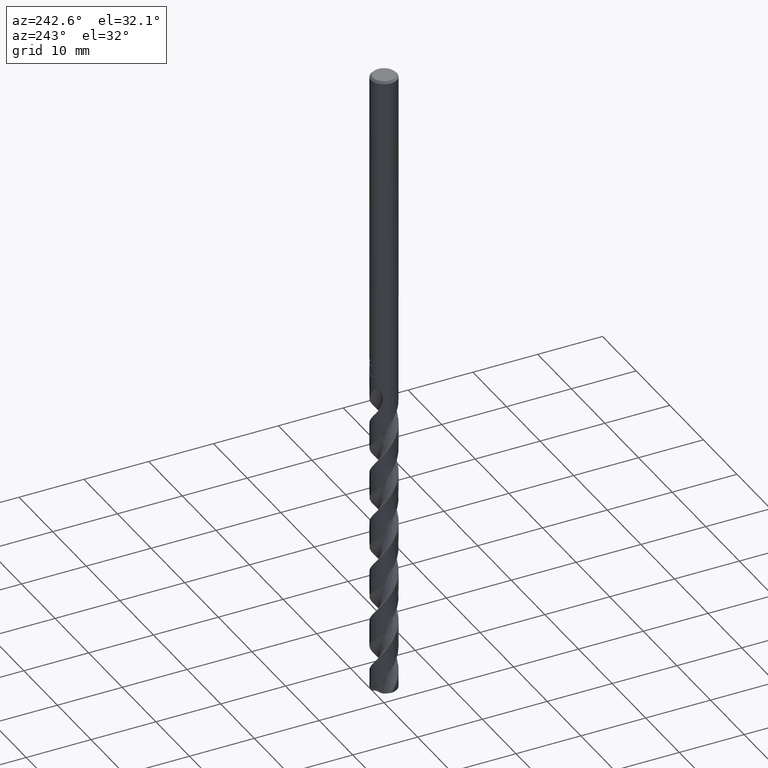
[diagram: clean part render]
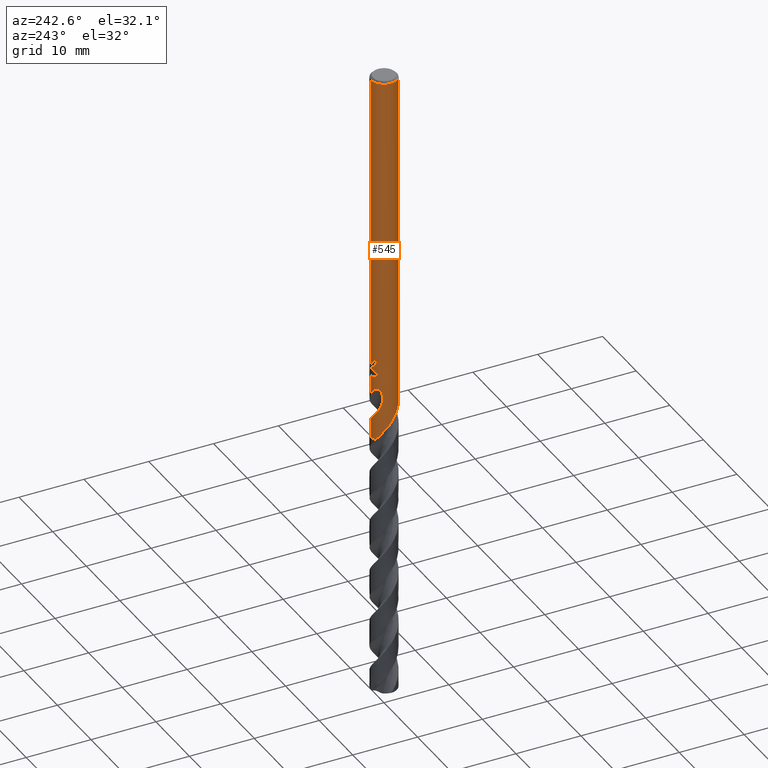
[diagram: same view with one face highlighted and labeled with its STEP entity id]
A machine part, auxiliary view. The second image highlights one B-rep face of the part: STEP entity #545.
In plain terms, the highlighted cylindrical surface (edge-blend (fillet) strip) has radius 2 mm, axis along (-0, -0, 1).
Its self-contained STEP definition (entity closure, byte-faithful):
#393=VERTEX_POINT('',#1035);
#431=EDGE_CURVE('',#665,#955,#1077,.T.);
#435=EDGE_CURVE('',#745,#945,#1081,.T.);
#511=EDGE_CURVE('',#953,#523,#1165,.T.);
#517=EDGE_CURVE('',#897,#879,#1172,.T.);
#523=VERTEX_POINT('',#1180);
#533=VERTEX_POINT('',#1190);
#539=EDGE_CURVE('',#533,#751,#1196,.T.);
#545=ADVANCED_FACE('',(#1202),#1203,.T.);
#569=EDGE_CURVE('',#639,#657,#1230,.T.);
#607=VERTEX_POINT('',#1271);
#629=EDGE_CURVE('',#955,#639,#1295,.T.);
#631=EDGE_CURVE('',#937,#665,#1297,.T.);
#639=VERTEX_POINT('',#1305);
#657=VERTEX_POINT('',#1325);
#665=VERTEX_POINT('',#1334);
#673=EDGE_CURVE('',#607,#809,#1343,.T.);
#681=EDGE_CURVE('',#919,#937,#1352,.T.);
#697=EDGE_CURVE('',#879,#851,#1369,.T.);
#699=EDGE_CURVE('',#945,#897,#1371,.T.);
#745=VERTEX_POINT('',#1423);
#751=VERTEX_POINT('',#1430);
#791=EDGE_CURVE('',#393,#533,#1474,.T.);
#809=VERTEX_POINT('',#1492);
#811=EDGE_CURVE('',#745,#657,#1494,.T.);
#839=EDGE_CURVE('',#809,#953,#1523,.T.);
#851=VERTEX_POINT('',#1535);
#853=EDGE_CURVE('',#851,#607,#1537,.T.);
#855=EDGE_CURVE('',#523,#393,#1539,.T.);
#875=EDGE_CURVE('',#751,#919,#1561,.T.);
#879=VERTEX_POINT('',#1566);
#897=VERTEX_POINT('',#1584);
#919=VERTEX_POINT('',#1608);
#937=VERTEX_POINT('',#1627);
#945=VERTEX_POINT('',#1635);
#953=VERTEX_POINT('',#1644);
#955=VERTEX_POINT('',#1646);
#1035=CARTESIAN_POINT('',(2.06254272401597E-016,2.0,-46.5000801551882));
#1077=B_SPLINE_CURVE_WITH_KNOTS('',3,(#4420,#4421,#4422,#4423),.UNSPECIFIED.,.F.,.F.,(4,4),(0.0,1.14943980484442),.UNSPECIFIED.);
#1081=B_SPLINE_CURVE_WITH_KNOTS('',3,(#4450,#4451,#4452,#4453,#4454,#4455,#4456,#4457,#4458,#4459,#4460,#4461,#4462,#4463,#4464,#4465,#4466,#4467,#4468,#4469,#4470,#4471,#4472,#4473,#4474,#4475,#4476,#4477,#4478,#4479,#4480,#4481),.UNSPECIFIED.,.F.,.F.,(4,2,2,2,2,2,2,2,2,2,2,2,2,2,2,4),(0.0,0.415921494881241,0.623686639972882,0.831137669081437,1.24699902469341,1.45488942522247,1.87002627350651,2.33743914243429,2.80376110627365,4.17282011940477,4.8108756172487,5.04513677419802,5.68085786591021,6.11884105644909,6.31265832183833,6.5653751221707),.UNSPECIFIED.);
#1165=CIRCLE('',#8269,2.0);
#1172=LINE('',#8279,#8280);
#1180=CARTESIAN_POINT('',(-1.0350734039088,1.71132201777476,-45.3171221986971));
#1190=CARTESIAN_POINT('',(2.93044111428508E-015,2.0,-46.7128911336578));
#1196=ELLIPSE('',#8570,2.22985686408572,2.0);
#1202=FACE_OUTER_BOUND('',#8832,.T.);
#1203=CYLINDRICAL_SURFACE('',#8833,2.0);
#1230=LINE('',#9143,#9144);
#1271=CARTESIAN_POINT('',(-2.82033683478733E-016,2.0,-46.0232688117743));
#1295=B_SPLINE_CURVE_WITH_KNOTS('',3,(#10137,#10138,#10139,#10140,#10141,#10142,#10143,#10144,#10145,#10146,#10147,#10148,#10149,#10150,#10151,#10152,#10153,#10154,#10155,#10156,#10157,#10158,#10159,#10160,#10161,#10162,#10163,#10164,#10165,#10166),.UNSPECIFIED.,.F.,.F.,(4,2,2,2,2,2,2,2,2,2,2,2,2,2,4),(0.0,0.229077637688343,0.362068198238509,0.571144048483746,1.12078102650243,1.59148268417009,2.04437097566891,3.03302516995581,3.41907928026092,3.75695923837302,4.34834158153067,4.79191995088264,5.12454733467214,5.62384075377745,6.12295032978005),.UNSPECIFIED.);
#1297=B_SPLINE_CURVE_WITH_KNOTS('',3,(#10169,#10170,#10171,#10172,#10173,#10174,#10175,#10176,#10177,#10178,#10179,#10180,#10181,#10182,#10183,#10184,#10185,#10186,#10187,#10188,#10189,#10190,#10191,#10192,#10193,#10194,#10195,#10196),.UNSPECIFIED.,.F.,.F.,(4,2,2,2,2,2,2,2,2,2,2,2,2,4),(0.0,0.979891025783958,1.51493345566995,1.9995474122048,2.56255251247716,3.23885008512034,3.82500886700077,4.09063559365806,4.28477636240836,4.46849031469403,4.70154241769869,5.04250710011559,5.52722848363497,6.07843027913602),.UNSPECIFIED.);
#1305=CARTESIAN_POINT('',(7.02870758557275E-013,2.0,-54.9892944147125));
#1325=CARTESIAN_POINT('',(-2.44921270747736E-016,2.0,-58.0));
#1334=CARTESIAN_POINT('',(-1.62728432652948,1.16273200722759,-51.9338395401998));
#1343=B_SPLINE_CURVE_WITH_KNOTS('',3,(#10272,#10273,#10274,#10275,#10276,#10277,#10278,#10279,#10280,#10281,#10282,#10283,#10284,#10285,#10286,#10287,#10288,#10289,#10290,#10291,#10292,#10293,#10294,#10295,#10296,#10297,#10298),.UNSPECIFIED.,.F.,.F.,(4,2,3,2,2,2,2,2,2,2,2,2,4),(-0.548215590012305,-0.274107795006152,0.0,0.274107795006152,0.548215590012304,0.825730471423241,1.10324535283418,1.37444912584474,1.6456528988553,1.91870457575909,2.19175625266287,2.46480792956666,2.73785960647044),.UNSPECIFIED.);
#1352=LINE('',#10308,#10309);
#1369=CIRCLE('',#11784,2.0);
#1371=B_SPLINE_CURVE_WITH_KNOTS('',3,(#11787,#11788,#11789,#11790,#11791,#11792,#11793,#11794,#11795,#11796,#11797,#11798,#11799,#11800,#11801,#11802,#11803,#11804,#11805,#11806,#11807,#11808,#11809,#11810,#11811,#11812,#11813,#11814),.UNSPECIFIED.,.F.,.F.,(4,2,2,2,2,2,2,2,2,2,2,2,2,4),(0.0,0.979891025783956,1.51493345566995,1.99954741220481,2.56255251247721,3.23885008512057,3.82500886700108,4.09063559365836,4.28477636240868,4.46849031469436,4.70154241769904,5.04250710011594,5.52722848363531,6.07843027913632),.UNSPECIFIED.);
#1423=CARTESIAN_POINT('',(-0.910184588124474,1.78088854663639,-58.0));
#1430=CARTESIAN_POINT('',(-1.337052752443,1.4873768645453,-47.3720803908795));
#1474=LINE('',#14787,#14788);
#1492=CARTESIAN_POINT('',(-0.486378944383045,1.9399576084185,-45.6432837483006));
#1494=CIRCLE('',#15464,2.0);
#1523=B_SPLINE_CURVE_WITH_KNOTS('',3,(#16533,#16534,#16535,#16536,#16537,#16538,#16539,#16540,#16541,#16542,#16543,#16544,#16545,#16546,#16547,#16548,#16549,#16550,#16551,#16552,#16553,#16554,#16555,#16556,#16557,#16558,#16559),.UNSPECIFIED.,.F.,.F.,(4,2,3,2,2,2,2,2,2,2,2,2,4),(-0.548215590012305,-0.274107795006152,0.0,0.274107795006152,0.548215590012304,0.825730471423241,1.10324535283418,1.37444912584474,1.6456528988553,1.91870457575909,2.19175625266287,2.46480792956666,2.73785960647044),.UNSPECIFIED.);
#1535=CARTESIAN_POINT('',(0.0,2.0,-0.299999999999997));
#1537=LINE('',#16593,#16594);
#1539=B_SPLINE_CURVE_WITH_KNOTS('',3,(#16597,#16598,#16599,#16600,#16601,#16602,#16603,#16604,#16605,#16606,#16607,#16608,#16609,#16610,#16611,#16612,#16613,#16614,#16615,#16616),.UNSPECIFIED.,.F.,.F.,(4,2,2,2,2,2,2,2,2,4),(3.45441030101493,3.68346067074282,3.91251104047072,4.14156141019862,4.59966214965442,5.05038771369436,5.27575049571434,5.50111327773431,5.73544410316885,5.96977492860339),.UNSPECIFIED.);
#1561=B_SPLINE_CURVE_WITH_KNOTS('',3,(#16643,#16644,#16645,#16646,#16647,#16648,#16649,#16650,#16651,#16652,#16653,#16654,#16655,#16656),.UNSPECIFIED.,.F.,.F.,(4,2,2,2,2,2,4),(6.29875163181924,6.63672345938473,6.96307452388774,7.28942558839074,7.61577665289375,7.94212771739676,8.26462777482947),.UNSPECIFIED.);
#1566=CARTESIAN_POINT('',(2.44921270781215E-016,-2.0,-0.299999999999997));
#1584=CARTESIAN_POINT('',(5.92093377365524E-013,-2.0,-50.9030385828122));
#1608=CARTESIAN_POINT('',(-7.24729156774638E-017,2.0,-48.0310253601033));
#1627=CARTESIAN_POINT('',(-5.96423247161545E-013,2.0,-50.9030385828122));
#1635=CARTESIAN_POINT('',(-1.27443340277912,-1.54136935932982,-53.029));
#1644=CARTESIAN_POINT('',(-0.562333990228013,1.91931771299966,-45.3171221986971));
#1646=CARTESIAN_POINT('',(-1.39015468452944,1.43786993607936,-53.029));
#4420=CARTESIAN_POINT('',(-1.6272843265821,1.16273200715394,-51.9338395402287));
#4421=CARTESIAN_POINT('',(-1.56280597492687,1.25297172740491,-52.3005828474421));
#4422=CARTESIAN_POINT('',(-1.48509232689284,1.34608276885509,-52.6695086289497));
#4423=CARTESIAN_POINT('',(-1.39015468452944,1.43786993607936,-53.029));
#4450=CARTESIAN_POINT('',(-0.910184588124463,1.78088854663639,-58.0));
#4451=CARTESIAN_POINT('',(-0.986467079647253,1.74190174521139,-57.8909945021163));
#4452=CARTESIAN_POINT('',(-1.06019067306469,1.69804157411689,-57.7823329131508));
#4453=CARTESIAN_POINT('',(-1.16621908890731,1.62535132959475,-57.6189622437749));
#4454=CARTESIAN_POINT('',(-1.20072654913492,1.60002630357028,-57.5645585666677));
#4455=CARTESIAN_POINT('',(-1.26796434961204,1.54728449275102,-57.4556948699224));
#4456=CARTESIAN_POINT('',(-1.30067961366061,1.51988643856683,-57.4012132729875));
#4457=CARTESIAN_POINT('',(-1.39632648100066,1.43443197026043,-57.2377866565988));
#4458=CARTESIAN_POINT('',(-1.45646875271387,1.37333439480957,-57.1291082874377));
#4459=CARTESIAN_POINT('',(-1.54059083420668,1.2760941645493,-56.9657608822811));
#4460=CARTESIAN_POINT('',(-1.56756797106405,1.24280495984925,-56.9113479379802));
#4461=CARTESIAN_POINT('',(-1.6451210980788,1.14056473783576,-56.7481107280335));
#4462=CARTESIAN_POINT('',(-1.69234719991609,1.0692383701506,-56.6390295219066));
#4463=CARTESIAN_POINT('',(-1.78277967941246,0.911571838692858,-56.4077923291589));
#4464=CARTESIAN_POINT('',(-1.82458997696537,0.824708789590802,-56.2858141541884));
#4465=CARTESIAN_POINT('',(-1.89530061341248,0.645806101911879,-56.0412493658422));
#4466=CARTESIAN_POINT('',(-1.92410268096062,0.554110412206469,-55.9187295871557));
#4467=CARTESIAN_POINT('',(-2.01111284537496,0.186559554055646,-55.4378993438255));
#4468=CARTESIAN_POINT('',(-2.01729672201559,-0.098097193939552,-55.0848596608422));
#4469=CARTESIAN_POINT('',(-1.94010761402003,-0.503155495154057,-54.5593893629108));
#4470=CARTESIAN_POINT('',(-1.90290799367195,-0.62987477750857,-54.3887590446724));
#4471=CARTESIAN_POINT('',(-1.83418976245807,-0.79884132640596,-54.1610002370648));
#4472=CARTESIAN_POINT('',(-1.8148069894153,-0.841915196212579,-54.103254666736));
#4473=CARTESIAN_POINT('',(-1.73518753504142,-1.00319390725693,-53.8786377008461));
#4474=CARTESIAN_POINT('',(-1.67718317606959,-1.09283507293207,-53.7334858281648));
#4475=CARTESIAN_POINT('',(-1.59373082225831,-1.2097333397505,-53.54032308694));
#4476=CARTESIAN_POINT('',(-1.52626761549511,-1.2950463977844,-53.3905315043353));
#4477=CARTESIAN_POINT('',(-1.44664396443882,-1.38149235737276,-53.2543072679112));
#4478=CARTESIAN_POINT('',(-1.4205001536415,-1.40843859362335,-53.2140110885852));
#4479=CARTESIAN_POINT('',(-1.35602737039301,-1.47097719383487,-53.1240135859237));
#4480=CARTESIAN_POINT('',(-1.31670765472791,-1.50641620651481,-53.0755906804809));
#4481=CARTESIAN_POINT('',(-1.27443340277912,-1.54136935932982,-53.029));
#8269=AXIS2_PLACEMENT_3D('',#21684,#21685,#21686);
#8279=CARTESIAN_POINT('',(2.44921270781215E-016,-2.0,-54.0));
#8280=VECTOR('',#21696,1.0);
#8570=AXIS2_PLACEMENT_3D('',#21716,#21717,#21718);
#8832=EDGE_LOOP('',(#21720,#21721,#21722,#21723,#21724,#21725,#21726,#21727,#21728,#21729,#21730,#21731,#21732,#21733,#21734,#21735,#21736,#21737));
#8833=AXIS2_PLACEMENT_3D('',#21738,#21739,#21740);
#9143=CARTESIAN_POINT('',(-2.44921270747736E-016,2.0,-54.0));
#9144=VECTOR('',#21768,1.0);
#10137=CARTESIAN_POINT('',(-1.39015468452944,1.43786993607936,-53.029));
#10138=CARTESIAN_POINT('',(-1.35767021839279,1.4692764156511,-53.0905558432964));
#10139=CARTESIAN_POINT('',(-1.32356746142767,1.50015046339666,-53.1525371230917));
#10140=CARTESIAN_POINT('',(-1.26577079946081,1.54873931939337,-53.2507281516006));
#10141=CARTESIAN_POINT('',(-1.2441367386599,1.56618019847411,-53.2861837522654));
#10142=CARTESIAN_POINT('',(-1.18666066116079,1.61052953788699,-53.3775926938834));
#10143=CARTESIAN_POINT('',(-1.15053227614374,1.63656541478454,-53.4325891086136));
#10144=CARTESIAN_POINT('',(-1.01331110081167,1.72844222911717,-53.6387295520326));
#10145=CARTESIAN_POINT('',(-0.909084957984337,1.78527715244298,-53.7892878796073));
#10146=CARTESIAN_POINT('',(-0.71040195977086,1.87225530153271,-54.067244024835));
#10147=CARTESIAN_POINT('',(-0.615862576977413,1.90546938556052,-54.1938073715678));
#10148=CARTESIAN_POINT('',(-0.42541563513152,1.95662255411705,-54.4437048415003));
#10149=CARTESIAN_POINT('',(-0.330537894470441,1.97484531190043,-54.5664876582823));
#10150=CARTESIAN_POINT('',(-0.0262091591831656,2.01084205480861,-54.9571943831535));
#10151=CARTESIAN_POINT('',(0.185253192430628,2.00249297478838,-55.2228601795272));
#10152=CARTESIAN_POINT('',(0.472239952810144,1.94518475444153,-55.5951201187771));
#10153=CARTESIAN_POINT('',(0.55176633502317,1.92413842591328,-55.6995608967979));
#10154=CARTESIAN_POINT('',(0.698045187255334,1.8756084526348,-55.8955922595737));
#10155=CARTESIAN_POINT('',(0.765024761770877,1.84929863115948,-55.9870033847097));
#10156=CARTESIAN_POINT('',(0.944895326339559,1.7672027982561,-56.2387338012438));
#10157=CARTESIAN_POINT('',(1.05422023942373,1.70425174935985,-56.3986500612019));
#10158=CARTESIAN_POINT('',(1.23396821757138,1.57678222238084,-56.6789098692217));
#10159=CARTESIAN_POINT('',(1.30702370551417,1.51677322986979,-56.7988479175856));
#10160=CARTESIAN_POINT('',(1.4269416639219,1.40315672219311,-57.0091026629263));
#10161=CARTESIAN_POINT('',(1.4757170578169,1.35176686105162,-57.0991467896371));
#10162=CARTESIAN_POINT('',(1.59065007989958,1.21701719262425,-57.3244508030597));
#10163=CARTESIAN_POINT('',(1.65305918360968,1.13079000221309,-57.4593527991435));
#10164=CARTESIAN_POINT('',(1.76354992627093,0.949301868789619,-57.7298107441577));
#10165=CARTESIAN_POINT('',(1.8114831851152,0.854296042493813,-57.8648323225442));
#10166=CARTESIAN_POINT('',(1.8516480012534,0.755909835532166,-58.0));
#10169=CARTESIAN_POINT('',(1.27443340277912,1.54136935932982,-53.029));
#10170=CARTESIAN_POINT('',(1.14250588825671,1.65044952900835,-52.7508201521267));
#10171=CARTESIAN_POINT('',(0.990819015406827,1.74741424166525,-52.4914669759725));
#10172=CARTESIAN_POINT('',(0.726322274010111,1.8662647703496,-52.0581995956864));
#10173=CARTESIAN_POINT('',(0.631144048625947,1.90045352762864,-51.9057617463303));
#10174=CARTESIAN_POINT('',(0.446891016817883,1.95154982399081,-51.6106814765841));
#10175=CARTESIAN_POINT('',(0.358638910892255,1.96960202720759,-51.4694145017769));
#10176=CARTESIAN_POINT('',(0.167610257338279,1.99565583830145,-51.1649465559366));
#10177=CARTESIAN_POINT('',(0.0632380601295488,2.00177256945438,-50.9993623681191));
#10178=CARTESIAN_POINT('',(-0.168545790328517,1.99689714022875,-50.6451232108188));
#10179=CARTESIAN_POINT('',(-0.305970157280141,1.9818173784247,-50.4435572717496));
#10180=CARTESIAN_POINT('',(-0.5709752997636,1.92091801941028,-50.1111889099651));
#10181=CARTESIAN_POINT('',(-0.717592089498264,1.87452037255226,-49.9490060983771));
#10182=CARTESIAN_POINT('',(-0.939495091515674,1.76727364078459,-49.7971383291646));
#10183=CARTESIAN_POINT('',(-1.01294639422617,1.72678556599747,-49.7596057523661));
#10184=CARTESIAN_POINT('',(-1.14164997194092,1.64341961466442,-49.7307739891013));
#10185=CARTESIAN_POINT('',(-1.19443854001709,1.60545413098805,-49.7302356217765));
#10186=CARTESIAN_POINT('',(-1.29276010169622,1.52725315415526,-49.7554693849241));
#10187=CARTESIAN_POINT('',(-1.33576104800075,1.48948364069817,-49.7791282882989));
#10188=CARTESIAN_POINT('',(-1.42326749715933,1.40671469713136,-49.8531542844012));
#10189=CARTESIAN_POINT('',(-1.4637519414578,1.36382174906286,-49.9078091708465));
#10190=CARTESIAN_POINT('',(-1.54667717482962,1.2701618498924,-50.0574712301094));
#10191=CARTESIAN_POINT('',(-1.58631378315256,1.21915733013005,-50.1684762546191));
#10192=CARTESIAN_POINT('',(-1.66084896159774,1.11674088399652,-50.4790559582158));
#10193=CARTESIAN_POINT('',(-1.68779515542677,1.07311639038955,-50.7002466517825));
#10194=CARTESIAN_POINT('',(-1.70502436417035,1.04555773694752,-51.2290721087933));
#10195=CARTESIAN_POINT('',(-1.69281634345216,1.07101764539592,-51.5611126594861));
#10196=CARTESIAN_POINT('',(-1.62728432652948,1.16273200722759,-51.9338395401997));
#10272=CARTESIAN_POINT('',(0.666631086045354,1.88563066243578,-44.8151107929061));
#10273=CARTESIAN_POINT('',(0.729102320063794,1.86354507196998,-44.8780227488525));
#10274=CARTESIAN_POINT('',(0.783764436294818,1.84046805476626,-44.9577166766729));
#10275=CARTESIAN_POINT('',(0.856939166721748,1.80755766979359,-45.1337829674881));
#10276=CARTESIAN_POINT('',(0.875400981188567,1.79824167511881,-45.2302727475847));
#10277=CARTESIAN_POINT('',(0.875400981188567,1.79824167511881,-45.3216420125868));
#10278=CARTESIAN_POINT('',(0.875400981188567,1.79824167511881,-45.4130112775888));
#10279=CARTESIAN_POINT('',(0.856939166721748,1.80755766979359,-45.5095010576855));
#10280=CARTESIAN_POINT('',(0.783764436294818,1.84046805476626,-45.6855673485006));
#10281=CARTESIAN_POINT('',(0.729102320063794,1.86354507196998,-45.765261276321));
#10282=CARTESIAN_POINT('',(0.603383351336341,1.90799077087001,-45.8918671669599));
#10283=CARTESIAN_POINT('',(0.523220700755639,1.9324817755433,-45.9473851984488));
#10284=CARTESIAN_POINT('',(0.34594818022208,1.97194461719866,-46.0217410458937));
#10285=CARTESIAN_POINT('',(0.248747613970385,1.98662573029135,-46.0405166027747));
#10286=CARTESIAN_POINT('',(0.0664024182108826,2.00094055539991,-46.0405166027747));
#10287=CARTESIAN_POINT('',(-0.0298165717053062,2.00173631708055,-46.0225004233016));
#10288=CARTESIAN_POINT('',(-0.206564318568688,1.99127308369892,-45.949408961197));
#10289=CARTESIAN_POINT('',(-0.287121312363244,1.98033563604648,-45.8943562878938));
#10290=CARTESIAN_POINT('',(-0.414672305431932,1.95761889791181,-45.7673627445134));
#10291=CARTESIAN_POINT('',(-0.470171773775564,1.9443239450413,-45.6866825279345));
#10292=CARTESIAN_POINT('',(-0.544021821427443,1.92496686225787,-45.5093580077113));
#10293=CARTESIAN_POINT('',(-0.562348199187247,1.91931354991071,-45.4126592382214));
#10294=CARTESIAN_POINT('',(-0.562348199187247,1.91931354991071,-45.2306247869522));
#10295=CARTESIAN_POINT('',(-0.544021821427444,1.92496686225787,-45.1339260174622));
#10296=CARTESIAN_POINT('',(-0.470171773775569,1.9443239450413,-44.9566014972391));
#10297=CARTESIAN_POINT('',(-0.414672305431933,1.95761889791181,-44.8759212806602));
#10298=CARTESIAN_POINT('',(-0.350680272731794,1.96901583191115,-44.8122089191553));
#10308=CARTESIAN_POINT('',(-2.44921270747736E-016,2.0,-54.0));
#10309=VECTOR('',#21884,1.0);
#11784=AXIS2_PLACEMENT_3D('',#21896,#21897,#21898);
#11787=CARTESIAN_POINT('',(-1.27443340277912,-1.54136935932982,-53.029));
#11788=CARTESIAN_POINT('',(-1.14250588825672,-1.65044952900835,-52.7508201521267));
#11789=CARTESIAN_POINT('',(-0.990819015406827,-1.74741424166525,-52.4914669759725));
#11790=CARTESIAN_POINT('',(-0.726322274010111,-1.8662647703496,-52.0581995956864));
#11791=CARTESIAN_POINT('',(-0.631144048625946,-1.90045352762864,-51.9057617463303));
#11792=CARTESIAN_POINT('',(-0.446891016817883,-1.95154982399081,-51.6106814765841));
#11793=CARTESIAN_POINT('',(-0.358638910892255,-1.96960202720759,-51.4694145017769));
#11794=CARTESIAN_POINT('',(-0.16761025733827,-1.99565583830145,-51.1649465559366));
#11795=CARTESIAN_POINT('',(-0.0632380601295456,-2.00177256945438,-50.9993623681191));
#11796=CARTESIAN_POINT('',(0.168545790328537,-1.99689714022875,-50.6451232108188));
#11797=CARTESIAN_POINT('',(0.305970157280148,-1.9818173784247,-50.4435572717496));
#11798=CARTESIAN_POINT('',(0.570975299763575,-1.92091801941028,-50.1111889099651));
#11799=CARTESIAN_POINT('',(0.717592089498258,-1.87452037255226,-49.9490060983771));
#11800=CARTESIAN_POINT('',(0.939495091515668,-1.76727364078459,-49.7971383291646));
#11801=CARTESIAN_POINT('',(1.01294639422617,-1.72678556599748,-49.7596057523661));
#11802=CARTESIAN_POINT('',(1.14164997194093,-1.64341961466442,-49.7307739891013));
#11803=CARTESIAN_POINT('',(1.19443854001709,-1.60545413098805,-49.7302356217765));
#11804=CARTESIAN_POINT('',(1.29276010169622,-1.52725315415526,-49.7554693849241));
#11805=CARTESIAN_POINT('',(1.33576104800075,-1.48948364069817,-49.7791282882989));
#11806=CARTESIAN_POINT('',(1.42326749715933,-1.40671469713136,-49.8531542844012));
#11807=CARTESIAN_POINT('',(1.4637519414578,-1.36382174906286,-49.9078091708465));
#11808=CARTESIAN_POINT('',(1.54667717482962,-1.2701618498924,-50.0574712301094));
#11809=CARTESIAN_POINT('',(1.58631378315256,-1.21915733013006,-50.1684762546191));
#11810=CARTESIAN_POINT('',(1.66084896159774,-1.11674088399652,-50.4790559582158));
#11811=CARTESIAN_POINT('',(1.68779515542677,-1.07311639038955,-50.7002466517825));
#11812=CARTESIAN_POINT('',(1.70502436417035,-1.04555773694752,-51.2290721087933));
#11813=CARTESIAN_POINT('',(1.69281634345216,-1.07101764539592,-51.5611126594861));
#11814=CARTESIAN_POINT('',(1.62728432652948,-1.16273200722759,-51.9338395401997));
#14787=CARTESIAN_POINT('',(-2.44921270747736E-016,2.0,-54.0));
#14788=VECTOR('',#22023,1.0);
#15464=AXIS2_PLACEMENT_3D('',#22024,#22025,#22026);
#16533=CARTESIAN_POINT('',(0.666631086045354,1.88563066243578,-44.8151107929061));
#16534=CARTESIAN_POINT('',(0.729102320063794,1.86354507196998,-44.8780227488525));
#16535=CARTESIAN_POINT('',(0.783764436294818,1.84046805476626,-44.9577166766729));
#16536=CARTESIAN_POINT('',(0.856939166721748,1.80755766979359,-45.1337829674881));
#16537=CARTESIAN_POINT('',(0.875400981188567,1.79824167511881,-45.2302727475847));
#16538=CARTESIAN_POINT('',(0.875400981188567,1.79824167511881,-45.3216420125868));
#16539=CARTESIAN_POINT('',(0.875400981188567,1.79824167511881,-45.4130112775888));
#16540=CARTESIAN_POINT('',(0.856939166721748,1.80755766979359,-45.5095010576855));
#16541=CARTESIAN_POINT('',(0.783764436294818,1.84046805476626,-45.6855673485006));
#16542=CARTESIAN_POINT('',(0.729102320063794,1.86354507196998,-45.765261276321));
#16543=CARTESIAN_POINT('',(0.603383351336341,1.90799077087001,-45.8918671669599));
#16544=CARTESIAN_POINT('',(0.523220700755639,1.9324817755433,-45.9473851984488));
#16545=CARTESIAN_POINT('',(0.34594818022208,1.97194461719866,-46.0217410458937));
#16546=CARTESIAN_POINT('',(0.248747613970385,1.98662573029135,-46.0405166027747));
#16547=CARTESIAN_POINT('',(0.0664024182108826,2.00094055539991,-46.0405166027747));
#16548=CARTESIAN_POINT('',(-0.0298165717053062,2.00173631708055,-46.0225004233016));
#16549=CARTESIAN_POINT('',(-0.206564318568688,1.99127308369892,-45.949408961197));
#16550=CARTESIAN_POINT('',(-0.287121312363244,1.98033563604648,-45.8943562878938));
#16551=CARTESIAN_POINT('',(-0.414672305431932,1.95761889791181,-45.7673627445134));
#16552=CARTESIAN_POINT('',(-0.470171773775564,1.9443239450413,-45.6866825279345));
#16553=CARTESIAN_POINT('',(-0.544021821427443,1.92496686225787,-45.5093580077113));
#16554=CARTESIAN_POINT('',(-0.562348199187247,1.91931354991071,-45.4126592382214));
#16555=CARTESIAN_POINT('',(-0.562348199187247,1.91931354991071,-45.2306247869522));
#16556=CARTESIAN_POINT('',(-0.544021821427444,1.92496686225787,-45.1339260174622));
#16557=CARTESIAN_POINT('',(-0.470171773775569,1.9443239450413,-44.9566014972391));
#16558=CARTESIAN_POINT('',(-0.414672305431933,1.95761889791181,-44.8759212806602));
#16559=CARTESIAN_POINT('',(-0.350680272731794,1.96901583191115,-44.8122089191553));
#16593=CARTESIAN_POINT('',(-2.44921270747736E-016,2.0,-54.0));
#16594=VECTOR('',#22049,1.0);
#16597=CARTESIAN_POINT('',(-1.01214077168808,1.72498436464991,-45.0943139357074));
#16598=CARTESIAN_POINT('',(-1.02760409909055,1.71591120202078,-45.17164116628));
#16599=CARTESIAN_POINT('',(-1.03510901790186,1.71130047655525,-45.2499517374902));
#16600=CARTESIAN_POINT('',(-1.03510901790186,1.71130047655525,-45.4026519839754));
#16601=CARTESIAN_POINT('',(-1.02760409909055,1.71591120202078,-45.4809625551856));
#16602=CARTESIAN_POINT('',(-0.996677444285606,1.73405752727905,-45.6356170163308));
#16603=CARTESIAN_POINT('',(-0.973269579572756,1.74755595074379,-45.7119680395856));
#16604=CARTESIAN_POINT('',(-0.881410204984952,1.79664606670719,-45.9304692594489));
#16605=CARTESIAN_POINT('',(-0.790220617715834,1.84065993584611,-46.0620469235618));
#16606=CARTESIAN_POINT('',(-0.582027029644157,1.91659166983905,-46.2685988984182));
#16607=CARTESIAN_POINT('',(-0.450852503656059,1.95403675545886,-46.3586412616511));
#16608=CARTESIAN_POINT('',(-0.233356837113998,1.98769376298522,-46.448981260945));
#16609=CARTESIAN_POINT('',(-0.15743738744662,1.99526703384665,-46.471935409607));
#16610=CARTESIAN_POINT('',(-0.00423861482055131,2.00146423936786,-46.5021329222699));
#16611=CARTESIAN_POINT('',(0.0730426698273351,2.00007697904579,-46.5093686300866));
#16612=CARTESIAN_POINT('',(0.225853989496397,1.98874110695982,-46.5093686300866));
#16613=CARTESIAN_POINT('',(0.305378577369712,1.97815181086169,-46.501557282945));
#16614=CARTESIAN_POINT('',(0.461679481186635,1.94761205554746,-46.4697988218617));
#16615=CARTESIAN_POINT('',(0.538460876640542,1.92767145695347,-46.4458672276279));
#16616=CARTESIAN_POINT('',(0.611331212691685,1.90427785482815,-46.4148476871305));
#16643=CARTESIAN_POINT('',(-1.37648100360337,1.45096521209816,-47.3164588568619));
#16644=CARTESIAN_POINT('',(-1.31816673698937,1.50628596020562,-47.4024844309626));
#16645=CARTESIAN_POINT('',(-1.25225772826138,1.5618966813795,-47.4817936475267));
#16646=CARTESIAN_POINT('',(-1.11336107029931,1.66360432908601,-47.6210752807463));
#16647=CARTESIAN_POINT('',(-1.03560993885635,1.71378114990643,-47.6866869307959));
#16648=CARTESIAN_POINT('',(-0.863747529925185,1.80650878215652,-47.8045844711332));
#16649=CARTESIAN_POINT('',(-0.76962096706248,1.84902996088718,-47.8568713835843));
#16650=CARTESIAN_POINT('',(-0.569930857037894,1.92000186579586,-47.942429432433));
#16651=CARTESIAN_POINT('',(-0.46413564109323,1.94850394700092,-47.9757733351224));
#16652=CARTESIAN_POINT('',(-0.247741439375824,1.98764023510202,-48.0202051098028));
#16653=CARTESIAN_POINT('',(-0.137134918591789,1.99825621603292,-48.0312723335086));
#16654=CARTESIAN_POINT('',(0.0791270399578554,2.00132335359969,-48.0312723335086));
#16655=CARTESIAN_POINT('',(0.188762138964384,1.99403822635428,-48.0204593773478));
#16656=CARTESIAN_POINT('',(0.296280536758928,1.97793271966916,-47.9985887758549));
#21684=CARTESIAN_POINT('',(0.0,0.0,-45.3171221986971));
#21685=DIRECTION('',(0.0,-0.0,1.0));
#21686=DIRECTION('',(0.0,1.0,0.0));
#21696=DIRECTION('',(-0.0,-0.0,1.0));
#21716=CARTESIAN_POINT('',(0.0,0.0,-46.7128911336578));
#21717=DIRECTION('',(-0.442195774284071,0.0,0.896918556617774));
#21718=DIRECTION('',(0.896918556617774,-0.0,0.442195774284071));
#21720=ORIENTED_EDGE('',*,*,#853,.T.);
#21721=ORIENTED_EDGE('',*,*,#673,.T.);
#21722=ORIENTED_EDGE('',*,*,#839,.T.);
#21723=ORIENTED_EDGE('',*,*,#511,.T.);
#21724=ORIENTED_EDGE('',*,*,#855,.T.);
#21725=ORIENTED_EDGE('',*,*,#791,.T.);
#21726=ORIENTED_EDGE('',*,*,#539,.T.);
#21727=ORIENTED_EDGE('',*,*,#875,.T.);
#21728=ORIENTED_EDGE('',*,*,#681,.T.);
#21729=ORIENTED_EDGE('',*,*,#631,.T.);
#21730=ORIENTED_EDGE('',*,*,#431,.T.);
#21731=ORIENTED_EDGE('',*,*,#629,.T.);
#21732=ORIENTED_EDGE('',*,*,#569,.T.);
#21733=ORIENTED_EDGE('',*,*,#811,.F.);
#21734=ORIENTED_EDGE('',*,*,#435,.T.);
#21735=ORIENTED_EDGE('',*,*,#699,.T.);
#21736=ORIENTED_EDGE('',*,*,#517,.T.);
#21737=ORIENTED_EDGE('',*,*,#697,.T.);
#21738=CARTESIAN_POINT('',(0.0,0.0,-54.0));
#21739=DIRECTION('',(-0.0,-0.0,1.0));
#21740=DIRECTION('',(0.0,1.0,0.0));
#21768=DIRECTION('',(0.0,0.0,-1.0));
#21884=DIRECTION('',(0.0,0.0,-1.0));
#21896=CARTESIAN_POINT('',(0.0,0.0,-0.299999999999997));
#21897=DIRECTION('',(0.0,0.0,-1.0));
#21898=DIRECTION('',(0.0,1.0,0.0));
#22023=DIRECTION('',(0.0,0.0,-1.0));
#22024=CARTESIAN_POINT('',(0.0,0.0,-58.0));
#22025=DIRECTION('',(0.0,0.0,-1.0));
#22026=DIRECTION('',(0.0,1.0,0.0));
#22049=DIRECTION('',(0.0,0.0,-1.0));